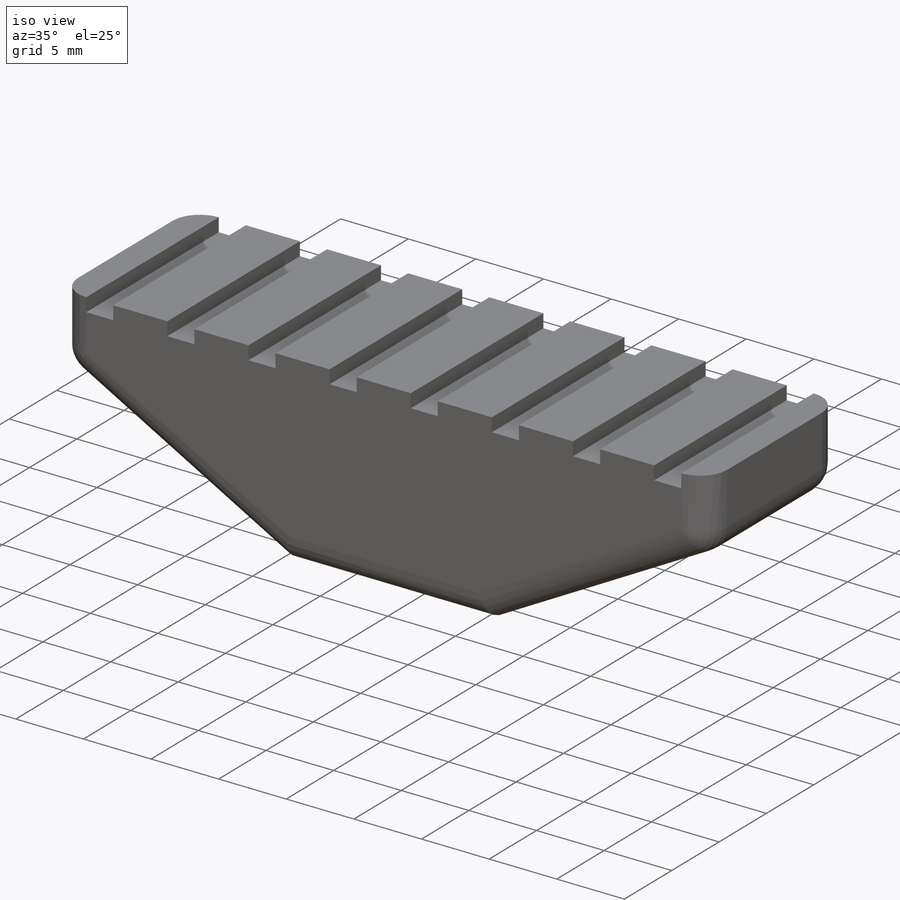
[diagram: iso view]
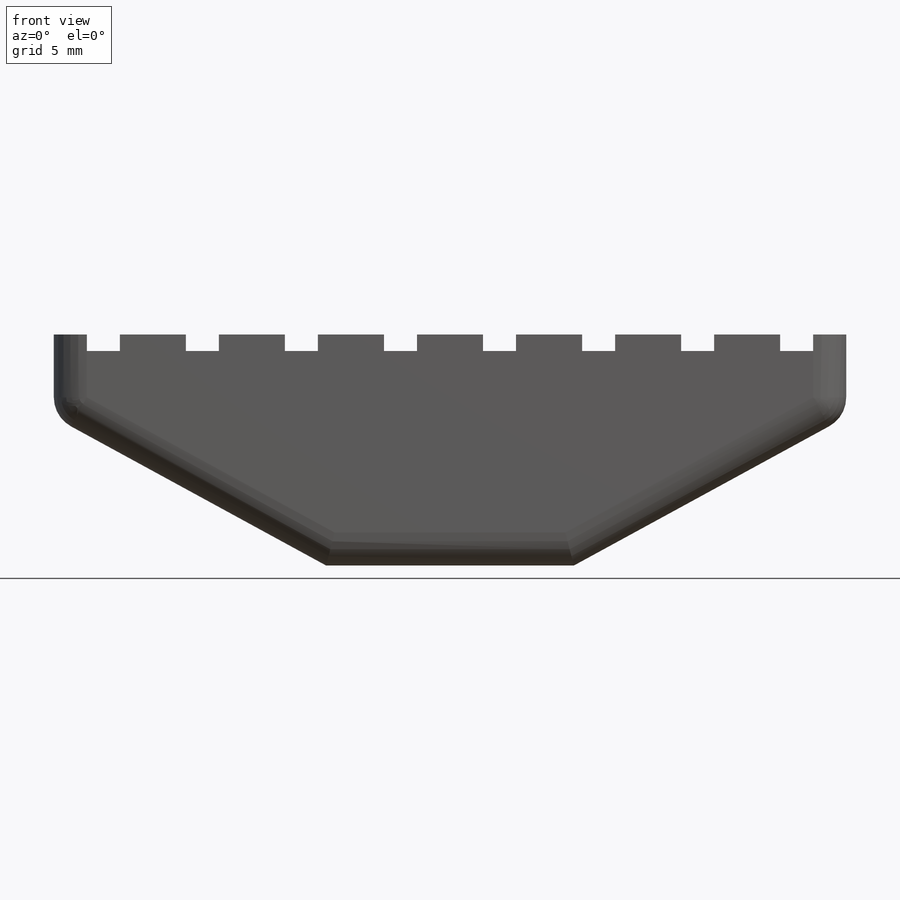
[diagram: front view]
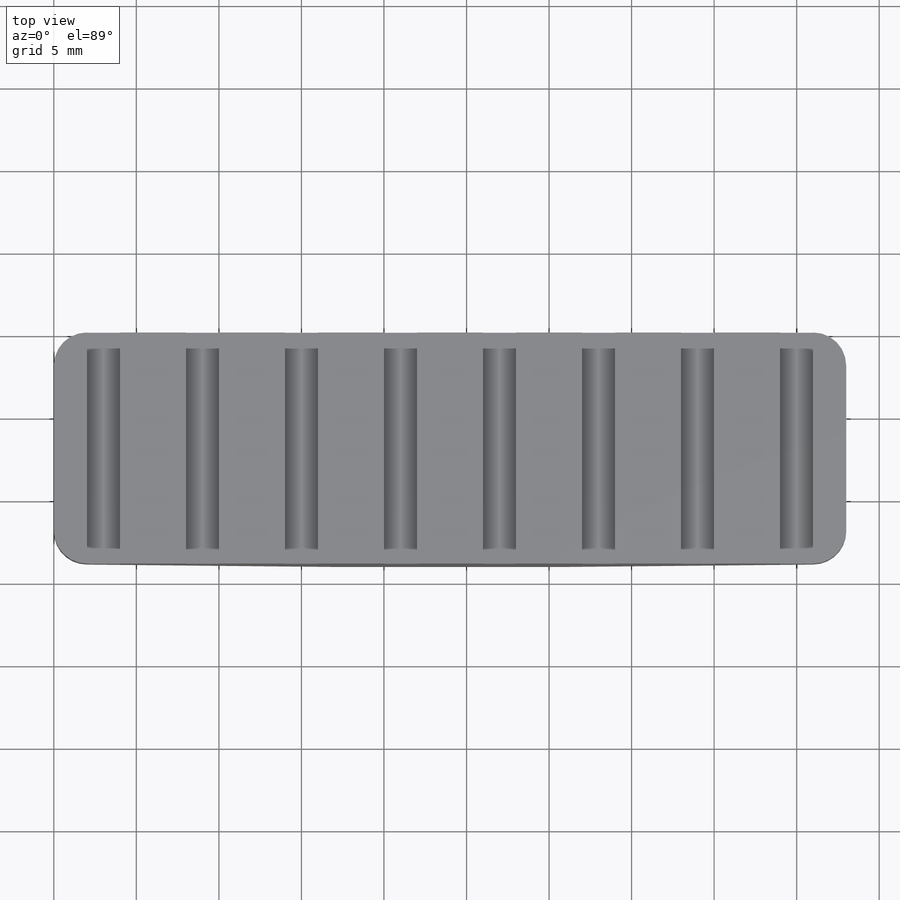
[diagram: top view]
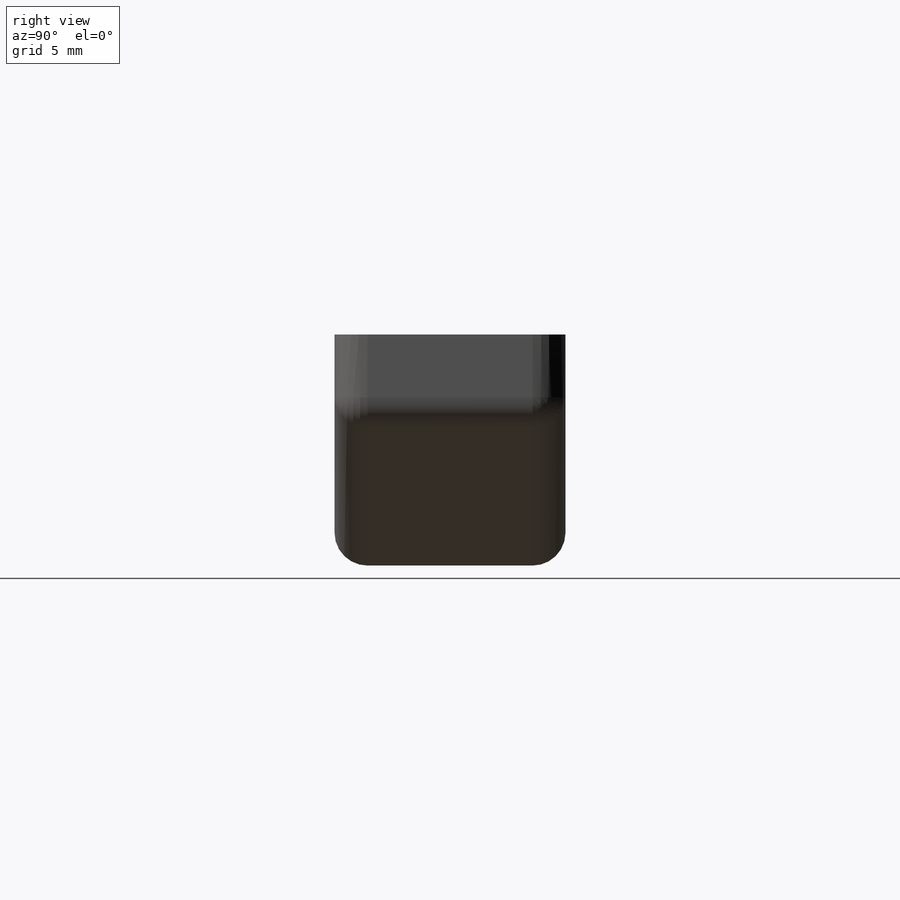
[diagram: right view]
SOLIDWORKS PART (.sldprt)
format: sldprt  version: not decoded by parser v0  size: 258,048 bytes
history: native  units: mm
features: sketch x3, cut_extrude x2, material x1, extrude x1, pattern_linear x1, fillet x1 (+12 scaffold rows collapsed)
feature tree (21):
  scaffold x12  (default folders/planes/origin — collapsed)
  material  "Material <not specified>"
  sketch  "Sketch1"  dims[c1.D1=54.0mm c1.D2=15.0mm c2.D1=48.0mm c2.D2=6.0mm c2.D3=6.0mm c2.D4=9.0mm c2.D5=9.0mm c2.D6=15.0mm c2.D7=16.5mm c2.D8=16.5mm c3.D2=5.0mm]
  extrude  "Boss-Extrude1"  Depth=14mm
  sketch  "Sketch4"  dims[D1=6.2mm]
  cut_extrude  "Cut-Extrude3"  Depth=8mm
  sketch  "Sketch7"  dims[D1=2.0mm D2=2.0mm]
  cut_extrude  "Cut-Extrude5"  Depth=1mm
  pattern_linear  "LPattern2"  Count1=8 Count2=1 Spacing1=6mm Spacing2=10mm
  fillet  "Fillet2"  Radius=2mm
decode coverage: 8 of 8 modeling features carry decoded parameters
note: suppression state not decoded; provenance and decode notes live in map.json
